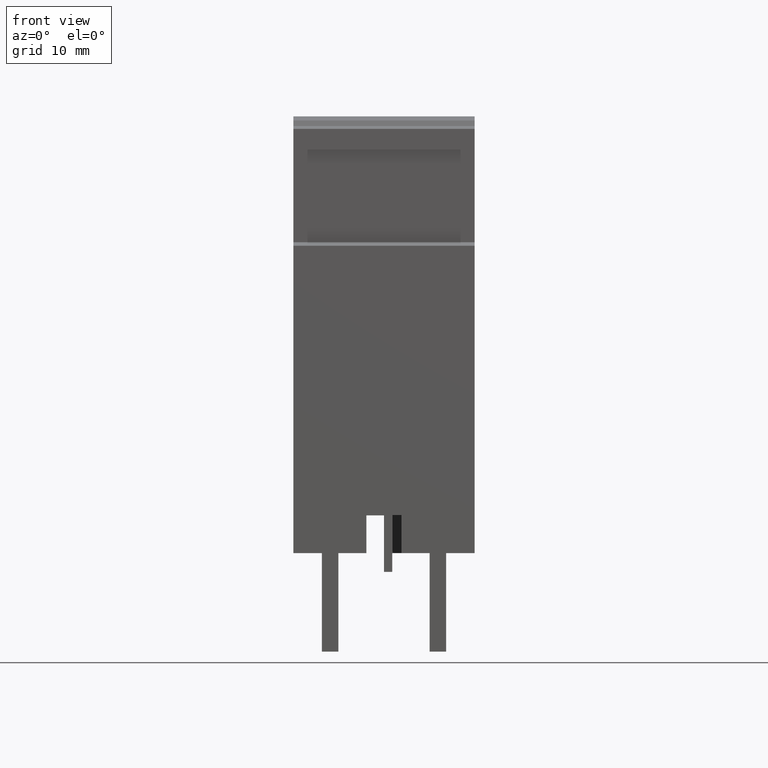
[diagram: clean part render]
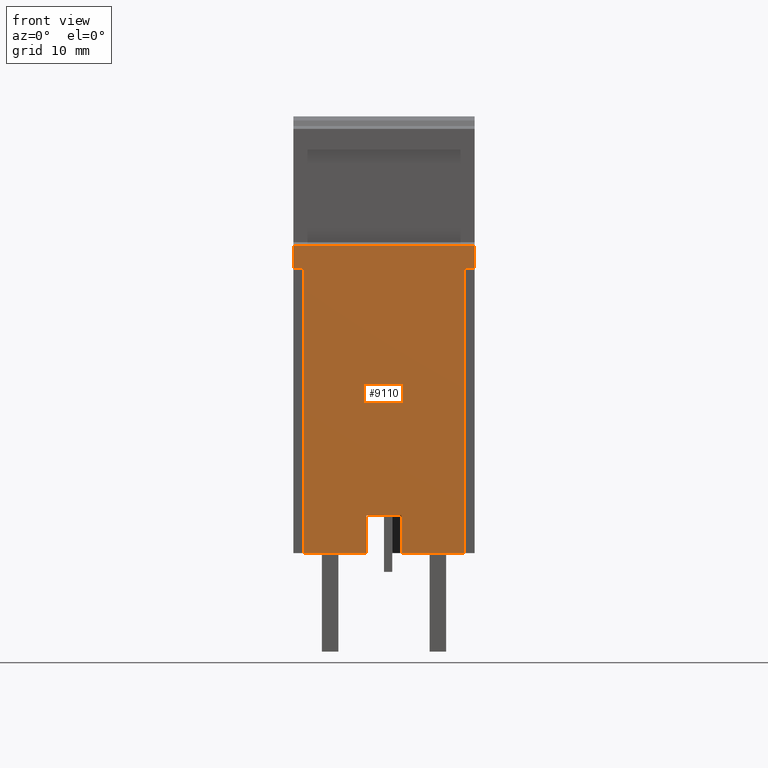
[diagram: same view with one face highlighted and labeled with its STEP entity id]
A machine part, front view. The second image highlights one B-rep face of the part: STEP entity #9110.
In plain terms, the highlighted planar face has unit normal (0, 1, -0).
Its self-contained STEP definition (entity closure, byte-faithful):
#2140=CARTESIAN_POINT('',(91.741351313916,57.5203756675806,
-48.0500000000926));
#2150=VERTEX_POINT('',#2140);
#2180=CARTESIAN_POINT('',(91.741351313916,-9.00000000000001,
-48.0500000000926));
#2190=DIRECTION('',(0.,-1.,0.));
#2200=VECTOR('',#2190,1.);
#2210=LINE('',#2180,#2200);
#2220=CARTESIAN_POINT('',(91.741351313916,55.3062740524428,
-48.0500000000926));
#2230=VERTEX_POINT('',#2220);
#2240=EDGE_CURVE('',#2150,#2230,#2210,.T.);
#5780=CARTESIAN_POINT('',(91.741351313916,55.3062740524428,
-49.0500000000925));
#5790=VERTEX_POINT('',#5780);
#5820=CARTESIAN_POINT('',(91.741351313916,-45.8562740524438,
-49.0500000000925));
#5830=DIRECTION('',(0.,-1.,0.));
#5840=VECTOR('',#5830,1.);
#5850=LINE('',#5820,#5840);
#5860=CARTESIAN_POINT('',(91.741351313916,27.8562740524438,
-49.0500000000925));
#5870=VERTEX_POINT('',#5860);
#5880=EDGE_CURVE('',#5790,#5870,#5850,.T.);
#6110=CARTESIAN_POINT('',(91.741351313916,55.3062740524428,
-65.5500000000924));
#6120=DIRECTION('',(-3.67394039744206E-16,0.,1.));
#6130=VECTOR('',#6120,1.);
#6140=LINE('',#6110,#6130);
#6150=EDGE_CURVE('',#5790,#2230,#6140,.T.);
#7380=CARTESIAN_POINT('',(91.741351313916,27.8562740524438,
-65.5500000000924));
#7390=DIRECTION('',(-3.67394039744206E-16,0.,1.));
#7400=VECTOR('',#7390,1.);
#7410=LINE('',#7380,#7400);
#7420=CARTESIAN_POINT('',(91.741351313916,27.8562740524438,
-55.1000000000925));
#7430=VERTEX_POINT('',#7420);
#7440=EDGE_CURVE('',#7430,#5870,#7410,.T.);
#8380=CARTESIAN_POINT('',(91.741351313916,27.8562740524438,
-65.5500000000926));
#8390=DIRECTION('',(-1.,0.,-3.67394039744206E-16));
#8400=DIRECTION('',(-3.67394039744206E-16,0.,1.));
#8410=AXIS2_PLACEMENT_3D('',#8380,#8390,#8400);
#8420=PLANE('',#8410);
#8430=CARTESIAN_POINT('',(91.741351313916,-9.00000000000001,
-65.5500000000926));
#8440=DIRECTION('',(0.,-1.,0.));
#8450=VECTOR('',#8440,1.);
#8460=LINE('',#8430,#8450);
#8470=CARTESIAN_POINT('',(91.741351313916,57.5203756675806,
-65.5500000000926));
#8480=VERTEX_POINT('',#8470);
#8490=CARTESIAN_POINT('',(91.741351313916,55.3062740524428,
-65.5500000000926));
#8500=VERTEX_POINT('',#8490);
#8510=EDGE_CURVE('',#8480,#8500,#8460,.T.);
#8520=ORIENTED_EDGE('',*,*,#8510,.F.);
#8530=CARTESIAN_POINT('',(91.741351313916,55.3062740524428,
-65.5500000000924));
#8540=DIRECTION('',(-3.67394039744206E-16,0.,1.));
#8550=VECTOR('',#8540,1.);
#8560=LINE('',#8530,#8550);
#8570=CARTESIAN_POINT('',(91.741351313916,55.3062740524428,
-64.5500000000926));
#8580=VERTEX_POINT('',#8570);
#8590=EDGE_CURVE('',#8500,#8580,#8560,.T.);
#8600=ORIENTED_EDGE('',*,*,#8590,.F.);
#8610=CARTESIAN_POINT('',(91.741351313916,-45.8562740524438,
-64.5500000000926));
#8620=DIRECTION('',(0.,-1.,0.));
#8630=VECTOR('',#8620,1.);
#8640=LINE('',#8610,#8630);
#8650=CARTESIAN_POINT('',(91.741351313916,27.8562740524438,
-64.5500000000926));
#8660=VERTEX_POINT('',#8650);
#8670=EDGE_CURVE('',#8580,#8660,#8640,.T.);
#8680=ORIENTED_EDGE('',*,*,#8670,.F.);
#8690=CARTESIAN_POINT('',(91.741351313916,27.8562740524438,
-65.5500000000924));
#8700=DIRECTION('',(-3.67394039744206E-16,0.,1.));
#8710=VECTOR('',#8700,1.);
#8720=LINE('',#8690,#8710);
#8730=CARTESIAN_POINT('',(91.741351313916,27.8562740524438,
-58.5000000000926));
#8740=VERTEX_POINT('',#8730);
#8750=EDGE_CURVE('',#8660,#8740,#8720,.T.);
#8760=ORIENTED_EDGE('',*,*,#8750,.F.);
#8770=CARTESIAN_POINT('',(91.741351313916,-45.8562740524438,
-58.5000000000926));
#8780=DIRECTION('',(0.,1.,0.));
#8790=VECTOR('',#8780,1.);
#8800=LINE('',#8770,#8790);
#8810=CARTESIAN_POINT('',(91.741351313916,31.5062740524438,
-58.5000000000926));
#8820=VERTEX_POINT('',#8810);
#8830=EDGE_CURVE('',#8740,#8820,#8800,.T.);
#8840=ORIENTED_EDGE('',*,*,#8830,.F.);
#8850=CARTESIAN_POINT('',(91.741351313916,31.5062740524438,
-65.5500000000924));
#8860=DIRECTION('',(3.67394039744206E-16,0.,-1.));
#8870=VECTOR('',#8860,1.);
#8880=LINE('',#8850,#8870);
#8890=CARTESIAN_POINT('',(91.741351313916,31.5062740524438,
-55.1000000000925));
#8900=VERTEX_POINT('',#8890);
#8910=EDGE_CURVE('',#8900,#8820,#8880,.T.);
#8920=ORIENTED_EDGE('',*,*,#8910,.T.);
#8930=CARTESIAN_POINT('',(91.741351313916,-45.8562740524438,
-55.1000000000925));
#8940=DIRECTION('',(0.,-1.,0.));
#8950=VECTOR('',#8940,1.);
#8960=LINE('',#8930,#8950);
#8970=EDGE_CURVE('',#8900,#7430,#8960,.T.);
#8980=ORIENTED_EDGE('',*,*,#8970,.F.);
#8990=ORIENTED_EDGE('',*,*,#7440,.F.);
#9000=ORIENTED_EDGE('',*,*,#5880,.T.);
#9010=ORIENTED_EDGE('',*,*,#6150,.F.);
#9020=ORIENTED_EDGE('',*,*,#2240,.T.);
#9030=CARTESIAN_POINT('',(91.741351313916,57.5203756675806,
-65.5500000000924));
#9040=DIRECTION('',(3.67394039744206E-16,0.,-1.));
#9050=VECTOR('',#9040,1.);
#9060=LINE('',#9030,#9050);
#9070=EDGE_CURVE('',#2150,#8480,#9060,.T.);
#9080=ORIENTED_EDGE('',*,*,#9070,.F.);
#9090=EDGE_LOOP('',(#9080,#9020,#9010,#9000,#8990,#8980,#8920,#8840,
#8760,#8680,#8600,#8520));
#9100=FACE_OUTER_BOUND('',#9090,.T.);
#9110=ADVANCED_FACE('',(#9100),#8420,.F.);